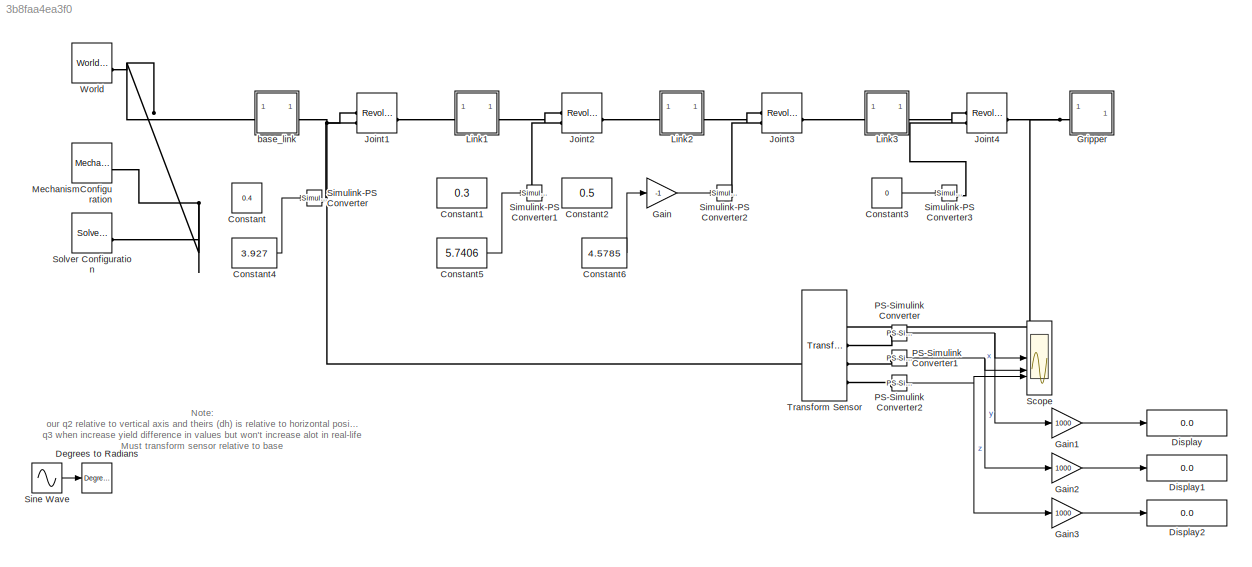
MODEL slx_3b8faa4ea3f0
KIND model
CONFIG AbsTol = auto
CONFIG EnableMultiTasking = off
CONFIG FixedStep = auto
CONFIG MaxStep = auto
CONFIG MinStep = auto
CONFIG RelTol = 1e-3
CONFIG SampleTimeConstraint = Unconstrained
CONFIG SolverName = VariableStepAuto
CONFIG StartTime = 0.0
CONFIG StopTime = 10.0
BLOCK [Constant] Constant
  Value = 0.4
BLOCK [Constant] Constant1
  Value = 0.3
BLOCK [Constant] Constant2
  Value = 0.5
BLOCK [Constant] Constant3
  Value = 0
BLOCK [Constant] Constant4
  Value = 3.927
BLOCK [Constant] Constant5
  Value = 5.7406
BLOCK [Constant] Constant6
  Value = 4.5785
BLOCK [Reference] Degrees to Radians  REF=simulink_extras/Transformations/Degrees to
Radians
  SourceBlock = simulink_extras/Transformations/Degrees to\nRadians
  SourceType = DegreesToRadians
BLOCK [Display] Display
  Decimation = 1
BLOCK [Display] Display1
  Decimation = 1
BLOCK [Display] Display2
  Decimation = 1
BLOCK [Gain] Gain
  Gain = -1
BLOCK [Gain] Gain1
  Gain = 1000
BLOCK [Gain] Gain2
  Gain = 1000
BLOCK [Gain] Gain3
  Gain = 1000
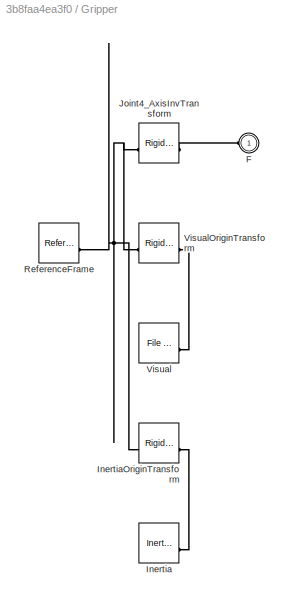
BLOCK [SubSystem] Gripper
BLOCK [PMIOPort] Gripper/F
  Side = Left
BLOCK [Reference] Gripper/Inertia  REF=sm_lib/Body Elements/Inertia
  SourceBlock = sm_lib/Body Elements/Inertia
  SourceType = Inertia
BLOCK [Reference] Gripper/InertiaOriginTransform  REF=sm_lib/Frames and
Transforms/Rigid
Transform
  SourceBlock = sm_lib/Frames and\nTransforms/Rigid\nTransform
  SourceType = Rigid\nTransform
BLOCK [Reference] Gripper/Joint4_AxisInvTransform  REF=sm_lib/Frames and
Transforms/Rigid
Transform
  SourceBlock = sm_lib/Frames and\nTransforms/Rigid\nTransform
  SourceType = Rigid\nTransform
BLOCK [Reference] Gripper/ReferenceFrame  REF=sm_lib/Frames and
Transforms/Reference
Frame
  SourceBlock = sm_lib/Frames and\nTransforms/Reference\nFrame
  SourceType = Reference\nFrame
BLOCK [Reference] Gripper/Visual  REF=sm_lib/Body Elements/File Solid
  SourceBlock = sm_lib/Body Elements/File Solid
  SourceType = File Solid
BLOCK [Reference] Gripper/VisualOriginTransform  REF=sm_lib/Frames and
Transforms/Rigid
Transform
  SourceBlock = sm_lib/Frames and\nTransforms/Rigid\nTransform
  SourceType = Rigid\nTransform
BLOCK [Reference] Joint1  REF=sm_lib/Joints/Revolute Joint
  SourceBlock = sm_lib/Joints/Revolute Joint
  SourceType = Revolute Joint
BLOCK [Reference] Joint2  REF=sm_lib/Joints/Revolute Joint
  SourceBlock = sm_lib/Joints/Revolute Joint
  SourceType = Revolute Joint
BLOCK [Reference] Joint3  REF=sm_lib/Joints/Revolute Joint
  SourceBlock = sm_lib/Joints/Revolute Joint
  SourceType = Revolute Joint
BLOCK [Reference] Joint4  REF=sm_lib/Joints/Revolute Joint
  SourceBlock = sm_lib/Joints/Revolute Joint
  SourceType = Revolute Joint
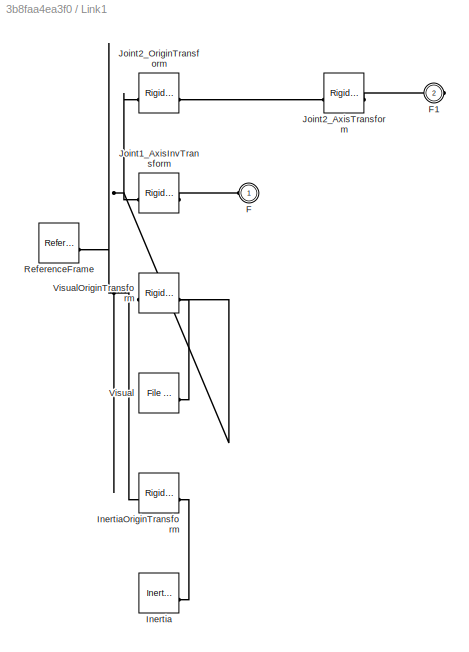
BLOCK [SubSystem] Link1
BLOCK [PMIOPort] Link1/F
  Side = Left
BLOCK [PMIOPort] Link1/F1
  Port = 2
  Side = Right
BLOCK [Reference] Link1/Inertia  REF=sm_lib/Body Elements/Inertia
  SourceBlock = sm_lib/Body Elements/Inertia
  SourceType = Inertia
BLOCK [Reference] Link1/InertiaOriginTransform  REF=sm_lib/Frames and
Transforms/Rigid
Transform
  SourceBlock = sm_lib/Frames and\nTransforms/Rigid\nTransform
  SourceType = Rigid\nTransform
BLOCK [Reference] Link1/Joint1_AxisInvTransform  REF=sm_lib/Frames and
Transforms/Rigid
Transform
  SourceBlock = sm_lib/Frames and\nTransforms/Rigid\nTransform
  SourceType = Rigid\nTransform
BLOCK [Reference] Link1/Joint2_AxisTransform  REF=sm_lib/Frames and
Transforms/Rigid
Transform
  SourceBlock = sm_lib/Frames and\nTransforms/Rigid\nTransform
  SourceType = Rigid\nTransform
BLOCK [Reference] Link1/Joint2_OriginTransform  REF=sm_lib/Frames and
Transforms/Rigid
Transform
  SourceBlock = sm_lib/Frames and\nTransforms/Rigid\nTransform
  SourceType = Rigid\nTransform
BLOCK [Reference] Link1/ReferenceFrame  REF=sm_lib/Frames and
Transforms/Reference
Frame
  SourceBlock = sm_lib/Frames and\nTransforms/Reference\nFrame
  SourceType = Reference\nFrame
BLOCK [Reference] Link1/Visual  REF=sm_lib/Body Elements/File Solid
  SourceBlock = sm_lib/Body Elements/File Solid
  SourceType = File Solid
BLOCK [Reference] Link1/VisualOriginTransform  REF=sm_lib/Frames and
Transforms/Rigid
Transform
  SourceBlock = sm_lib/Frames and\nTransforms/Rigid\nTransform
  SourceType = Rigid\nTransform
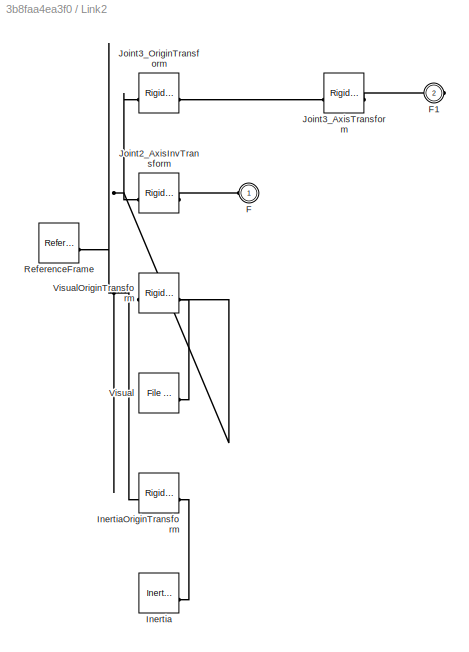
BLOCK [SubSystem] Link2
BLOCK [PMIOPort] Link2/F
  Side = Left
BLOCK [PMIOPort] Link2/F1
  Port = 2
  Side = Right
BLOCK [Reference] Link2/Inertia  REF=sm_lib/Body Elements/Inertia
  SourceBlock = sm_lib/Body Elements/Inertia
  SourceType = Inertia
BLOCK [Reference] Link2/InertiaOriginTransform  REF=sm_lib/Frames and
Transforms/Rigid
Transform
  SourceBlock = sm_lib/Frames and\nTransforms/Rigid\nTransform
  SourceType = Rigid\nTransform
BLOCK [Reference] Link2/Joint2_AxisInvTransform  REF=sm_lib/Frames and
Transforms/Rigid
Transform
  SourceBlock = sm_lib/Frames and\nTransforms/Rigid\nTransform
  SourceType = Rigid\nTransform
BLOCK [Reference] Link2/Joint3_AxisTransform  REF=sm_lib/Frames and
Transforms/Rigid
Transform
  SourceBlock = sm_lib/Frames and\nTransforms/Rigid\nTransform
  SourceType = Rigid\nTransform
BLOCK [Reference] Link2/Joint3_OriginTransform  REF=sm_lib/Frames and
Transforms/Rigid
Transform
  SourceBlock = sm_lib/Frames and\nTransforms/Rigid\nTransform
  SourceType = Rigid\nTransform
BLOCK [Reference] Link2/ReferenceFrame  REF=sm_lib/Frames and
Transforms/Reference
Frame
  SourceBlock = sm_lib/Frames and\nTransforms/Reference\nFrame
  SourceType = Reference\nFrame
BLOCK [Reference] Link2/Visual  REF=sm_lib/Body Elements/File Solid
  SourceBlock = sm_lib/Body Elements/File Solid
  SourceType = File Solid
BLOCK [Reference] Link2/VisualOriginTransform  REF=sm_lib/Frames and
Transforms/Rigid
Transform
  SourceBlock = sm_lib/Frames and\nTransforms/Rigid\nTransform
  SourceType = Rigid\nTransform
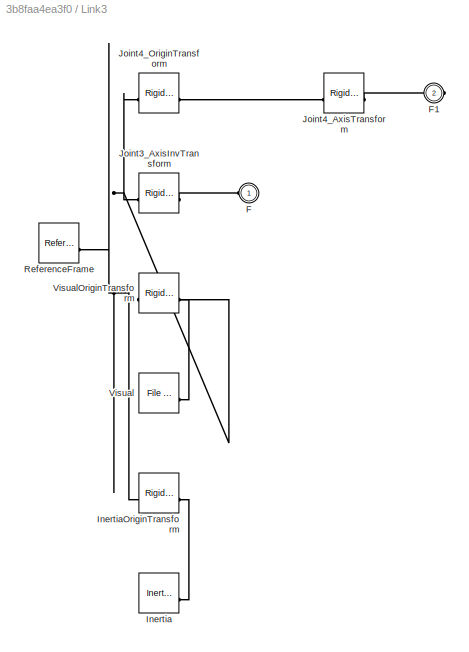
BLOCK [SubSystem] Link3
BLOCK [PMIOPort] Link3/F
  Side = Left
BLOCK [PMIOPort] Link3/F1
  Port = 2
  Side = Right
BLOCK [Reference] Link3/Inertia  REF=sm_lib/Body Elements/Inertia
  SourceBlock = sm_lib/Body Elements/Inertia
  SourceType = Inertia
BLOCK [Reference] Link3/InertiaOriginTransform  REF=sm_lib/Frames and
Transforms/Rigid
Transform
  SourceBlock = sm_lib/Frames and\nTransforms/Rigid\nTransform
  SourceType = Rigid\nTransform
BLOCK [Reference] Link3/Joint3_AxisInvTransform  REF=sm_lib/Frames and
Transforms/Rigid
Transform
  SourceBlock = sm_lib/Frames and\nTransforms/Rigid\nTransform
  SourceType = Rigid\nTransform
BLOCK [Reference] Link3/Joint4_AxisTransform  REF=sm_lib/Frames and
Transforms/Rigid
Transform
  SourceBlock = sm_lib/Frames and\nTransforms/Rigid\nTransform
  SourceType = Rigid\nTransform
BLOCK [Reference] Link3/Joint4_OriginTransform  REF=sm_lib/Frames and
Transforms/Rigid
Transform
  SourceBlock = sm_lib/Frames and\nTransforms/Rigid\nTransform
  SourceType = Rigid\nTransform
BLOCK [Reference] Link3/ReferenceFrame  REF=sm_lib/Frames and
Transforms/Reference
Frame
  SourceBlock = sm_lib/Frames and\nTransforms/Reference\nFrame
  SourceType = Reference\nFrame
BLOCK [Reference] Link3/Visual  REF=sm_lib/Body Elements/File Solid
  SourceBlock = sm_lib/Body Elements/File Solid
  SourceType = File Solid
BLOCK [Reference] Link3/VisualOriginTransform  REF=sm_lib/Frames and
Transforms/Rigid
Transform
  SourceBlock = sm_lib/Frames and\nTransforms/Rigid\nTransform
  SourceType = Rigid\nTransform
BLOCK [Reference] MechanismConfiguration  REF=sm_lib/Utilities/Mechanism
Configuration
  SourceBlock = sm_lib/Utilities/Mechanism\nConfiguration
  SourceType = Mechanism\nConfiguration
BLOCK [Reference] PS-Simulink Converter  REF=nesl_utility/PS-Simulink
Converter
  SourceBlock = nesl_utility/PS-Simulink\nConverter
  SourceType = PS-Simulink\nConverter
BLOCK [Reference] PS-Simulink Converter1  REF=nesl_utility/PS-Simulink
Converter
  SourceBlock = nesl_utility/PS-Simulink\nConverter
  SourceType = PS-Simulink\nConverter
BLOCK [Reference] PS-Simulink Converter2  REF=nesl_utility/PS-Simulink
Converter
  SourceBlock = nesl_utility/PS-Simulink\nConverter
  SourceType = PS-Simulink\nConverter
BLOCK [Scope] Scope
  Floating = off
  NumInputPorts = 3
  ScopeSpecificationString = Simulink.scopes.TimeScopeBlockCfg('CurrentConfiguration', extmgr.ConfigurationSet(extmgr.Configuration('Core','General UI',true),extmgr.Configuration('Core','Source UI',true),extmgr.Configuration('Sources','WiredSimulink',true),extmgr.Configuration('Visuals','Time Domain',true,'SerializedDisplays',{struct('MinYLimReal','0.0042','MaxYLimReal','0.0062','YLabelReal','','MinYLimMag','0.0042','MaxYLimM...<+2744ch>
BLOCK [Reference] Simulink-PS Converter  REF=nesl_utility/Simulink-PS
Converter
  SourceBlock = nesl_utility/Simulink-PS\nConverter
  SourceType = Simulink-PS\nConverter
BLOCK [Reference] Simulink-PS Converter1  REF=nesl_utility/Simulink-PS
Converter
  SourceBlock = nesl_utility/Simulink-PS\nConverter
  SourceType = Simulink-PS\nConverter
BLOCK [Reference] Simulink-PS Converter2  REF=nesl_utility/Simulink-PS
Converter
  SourceBlock = nesl_utility/Simulink-PS\nConverter
  SourceType = Simulink-PS\nConverter
BLOCK [Reference] Simulink-PS Converter3  REF=nesl_utility/Simulink-PS
Converter
  SourceBlock = nesl_utility/Simulink-PS\nConverter
  SourceType = Simulink-PS\nConverter
BLOCK [Sin] Sine Wave
  Amplitude = 45
  SampleTime = 0
BLOCK [Reference] Solver Configuration  REF=nesl_utility/Solver
Configuration
  SourceBlock = nesl_utility/Solver\nConfiguration
  SourceType = Solver\nConfiguration
BLOCK [Reference] Transform Sensor  REF=sm_lib/Frames and
Transforms/Transform
Sensor
  SourceBlock = sm_lib/Frames and\nTransforms/Transform\nSensor
  SourceType = Transform\nSensor
BLOCK [Reference] World  REF=sm_lib/Frames and
Transforms/World Frame
  SourceBlock = sm_lib/Frames and\nTransforms/World Frame
  SourceType = World Frame
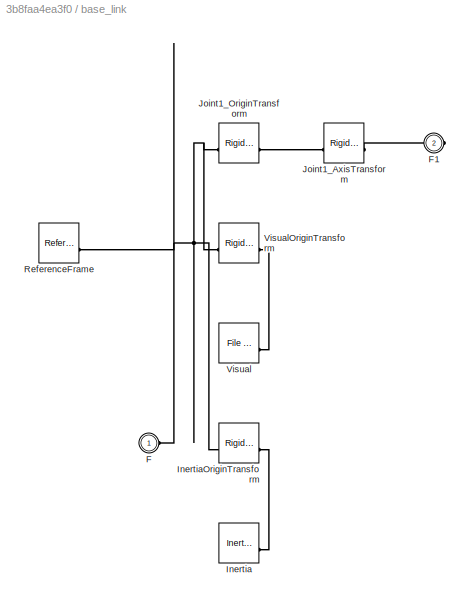
BLOCK [SubSystem] base_link
BLOCK [PMIOPort] base_link/F
  Side = Left
BLOCK [PMIOPort] base_link/F1
  Port = 2
  Side = Right
BLOCK [Reference] base_link/Inertia  REF=sm_lib/Body Elements/Inertia
  SourceBlock = sm_lib/Body Elements/Inertia
  SourceType = Inertia
BLOCK [Reference] base_link/InertiaOriginTransform  REF=sm_lib/Frames and
Transforms/Rigid
Transform
  SourceBlock = sm_lib/Frames and\nTransforms/Rigid\nTransform
  SourceType = Rigid\nTransform
BLOCK [Reference] base_link/Joint1_AxisTransform  REF=sm_lib/Frames and
Transforms/Rigid
Transform
  SourceBlock = sm_lib/Frames and\nTransforms/Rigid\nTransform
  SourceType = Rigid\nTransform
BLOCK [Reference] base_link/Joint1_OriginTransform  REF=sm_lib/Frames and
Transforms/Rigid
Transform
  SourceBlock = sm_lib/Frames and\nTransforms/Rigid\nTransform
  SourceType = Rigid\nTransform
BLOCK [Reference] base_link/ReferenceFrame  REF=sm_lib/Frames and
Transforms/Reference
Frame
  SourceBlock = sm_lib/Frames and\nTransforms/Reference\nFrame
  SourceType = Reference\nFrame
BLOCK [Reference] base_link/Visual  REF=sm_lib/Body Elements/File Solid
  SourceBlock = sm_lib/Body Elements/File Solid
  SourceType = File Solid
BLOCK [Reference] base_link/VisualOriginTransform  REF=sm_lib/Frames and
Transforms/Rigid
Transform
  SourceBlock = sm_lib/Frames and\nTransforms/Rigid\nTransform
  SourceType = Rigid\nTransform
ANNOTATION (root): Note: our q2 relative to vertical axis and theirs (dh) is relative to horizontal positive x-axis (robot sleeping to the right) q2_dh=90+ q2_ours q3 when increase yield difference in values but won't increase alot in real-life Must transform sensor relative to base
LINE Constant3:1 -> Simulink-PS Converter3:1
LINE Constant4:1 -> Simulink-PS Converter:1
LINE Constant5:1 -> Simulink-PS Converter1:1
LINE Constant6:1 -> Gain:1
LINE Gain1:1 -> Display:1
LINE Gain2:1 -> Display1:1
LINE Gain3:1 -> Display2:1
LINE Gain:1 -> Simulink-PS Converter2:1
NET PS-Simulink Converter1:1 -> Gain2:1, Scope:2
NET PS-Simulink Converter2:1 -> Gain3:1, Scope:3
NET PS-Simulink Converter:1 -> Gain1:1, Scope:1
LINE Sine Wave:1 -> Degrees to Radians:1
PLINE Gripper/F:RConn1 -- Gripper/Joint4_AxisInvTransform:RConn1
PLINE Gripper/Inertia:RConn1 -- Gripper/InertiaOriginTransform:RConn1
PNET net1: Gripper/InertiaOriginTransform:LConn1 -- Gripper/Joint4_AxisInvTransform:LConn1 -- Gripper/ReferenceFrame:RConn1 -- Gripper/VisualOriginTransform:LConn1
PLINE Gripper/Visual:RConn1 -- Gripper/VisualOriginTransform:RConn1
PNET net2: Gripper:LConn1 -- Joint4:RConn1 -- Transform Sensor:RConn1
PNET net3: Joint1:LConn1 -- Transform Sensor:LConn1 -- base_link:RConn1
PLINE Joint1:LConn2 -- Simulink-PS Converter:RConn1
PLINE Joint1:RConn1 -- Link1:LConn1
PLINE Joint2:LConn1 -- Link1:RConn1
PLINE Joint2:LConn2 -- Simulink-PS Converter1:RConn1
PLINE Joint2:RConn1 -- Link2:LConn1
PLINE Joint3:LConn1 -- Link2:RConn1
PLINE Joint3:LConn2 -- Simulink-PS Converter2:RConn1
PLINE Joint3:RConn1 -- Link3:LConn1
PLINE Joint4:LConn1 -- Link3:RConn1
PLINE Joint4:LConn2 -- Simulink-PS Converter3:RConn1
PLINE Link1/F1:RConn1 -- Link1/Joint2_AxisTransform:RConn1
PLINE Link1/F:RConn1 -- Link1/Joint1_AxisInvTransform:RConn1
PLINE Link1/Inertia:RConn1 -- Link1/InertiaOriginTransform:RConn1
PNET net4: Link1/InertiaOriginTransform:LConn1 -- Link1/Joint1_AxisInvTransform:LConn1 -- Link1/Joint2_OriginTransform:LConn1 -- Link1/ReferenceFrame:RConn1 -- Link1/VisualOriginTransform:LConn1
PLINE Link1/Joint2_AxisTransform:LConn1 -- Link1/Joint2_OriginTransform:RConn1
PLINE Link1/Visual:RConn1 -- Link1/VisualOriginTransform:RConn1
PLINE Link2/F1:RConn1 -- Link2/Joint3_AxisTransform:RConn1
PLINE Link2/F:RConn1 -- Link2/Joint2_AxisInvTransform:RConn1
PLINE Link2/Inertia:RConn1 -- Link2/InertiaOriginTransform:RConn1
PNET net5: Link2/InertiaOriginTransform:LConn1 -- Link2/Joint2_AxisInvTransform:LConn1 -- Link2/Joint3_OriginTransform:LConn1 -- Link2/ReferenceFrame:RConn1 -- Link2/VisualOriginTransform:LConn1
PLINE Link2/Joint3_AxisTransform:LConn1 -- Link2/Joint3_OriginTransform:RConn1
PLINE Link2/Visual:RConn1 -- Link2/VisualOriginTransform:RConn1
PLINE Link3/F1:RConn1 -- Link3/Joint4_AxisTransform:RConn1
PLINE Link3/F:RConn1 -- Link3/Joint3_AxisInvTransform:RConn1
PLINE Link3/Inertia:RConn1 -- Link3/InertiaOriginTransform:RConn1
PNET net6: Link3/InertiaOriginTransform:LConn1 -- Link3/Joint3_AxisInvTransform:LConn1 -- Link3/Joint4_OriginTransform:LConn1 -- Link3/ReferenceFrame:RConn1 -- Link3/VisualOriginTransform:LConn1
PLINE Link3/Joint4_AxisTransform:LConn1 -- Link3/Joint4_OriginTransform:RConn1
PLINE Link3/Visual:RConn1 -- Link3/VisualOriginTransform:RConn1
PNET net7: MechanismConfiguration:RConn1 -- Solver Configuration:RConn1 -- World:RConn1 -- base_link:LConn1
PLINE PS-Simulink Converter1:LConn1 -- Transform Sensor:RConn3
PLINE PS-Simulink Converter2:LConn1 -- Transform Sensor:RConn4
PLINE PS-Simulink Converter:LConn1 -- Transform Sensor:RConn2
PLINE base_link/F1:RConn1 -- base_link/Joint1_AxisTransform:RConn1
PNET net8: base_link/F:RConn1 -- base_link/InertiaOriginTransform:LConn1 -- base_link/Joint1_OriginTransform:LConn1 -- base_link/ReferenceFrame:RConn1 -- base_link/VisualOriginTransform:LConn1
PLINE base_link/Inertia:RConn1 -- base_link/InertiaOriginTransform:RConn1
PLINE base_link/Joint1_AxisTransform:LConn1 -- base_link/Joint1_OriginTransform:RConn1
PLINE base_link/Visual:RConn1 -- base_link/VisualOriginTransform:RConn1
note: NET lines group one-source signal fan-out (src -> all destinations, sorted); 1:1 wires keep LINE; PNET lines group multi-terminal physical nets as a canonical sorted terminal list (undirected conserving connections); 2-terminal nets keep the pairwise PLINE form
